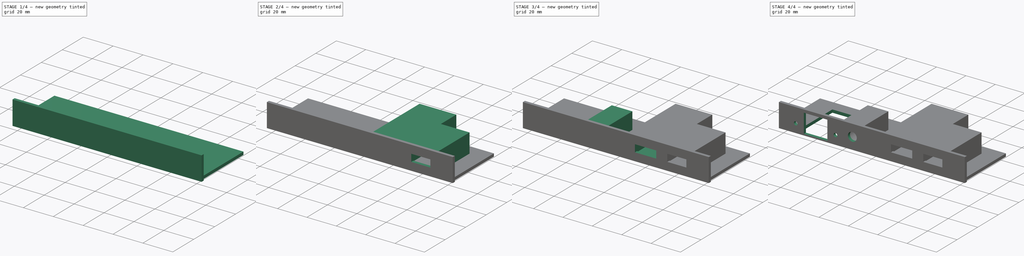
[diagram: build sequence overview — one tinted view per stage of 4, left to right]
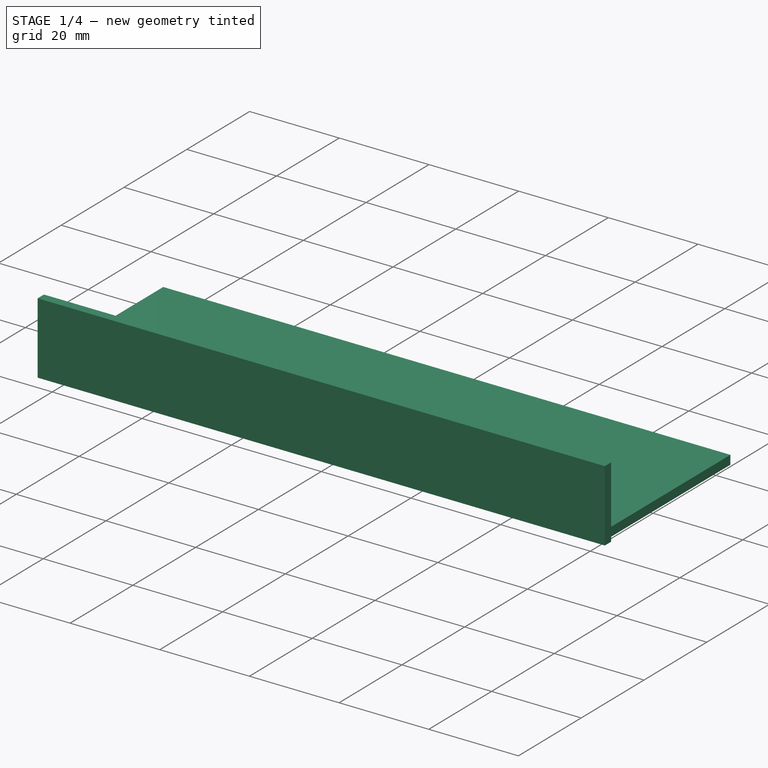
[diagram: stage 1 of 4 — iso view after this stage's code; geometry added in this stage tinted green]
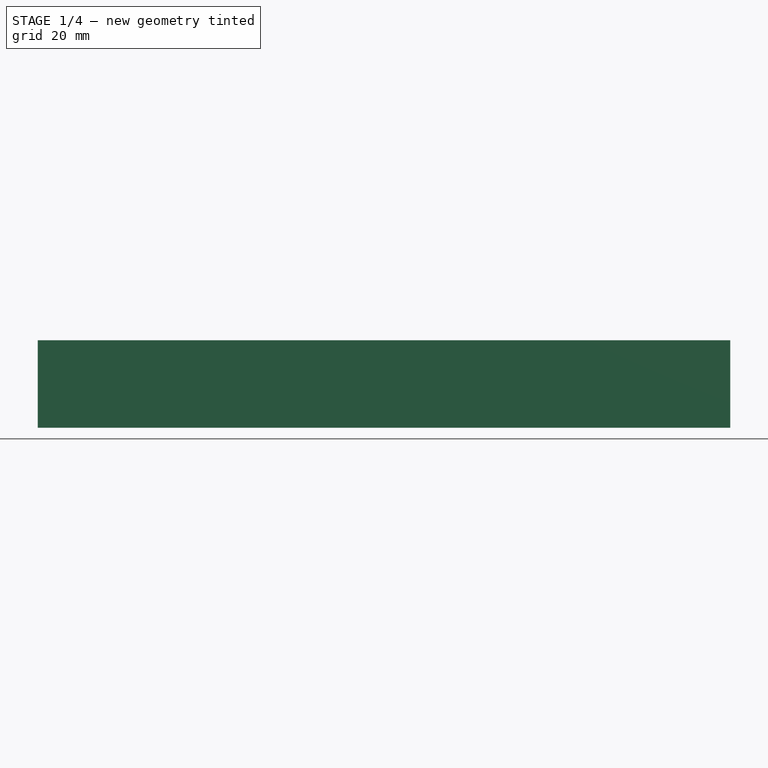
[diagram: stage 1 of 4 — front view after this stage's code; geometry added in this stage tinted green]
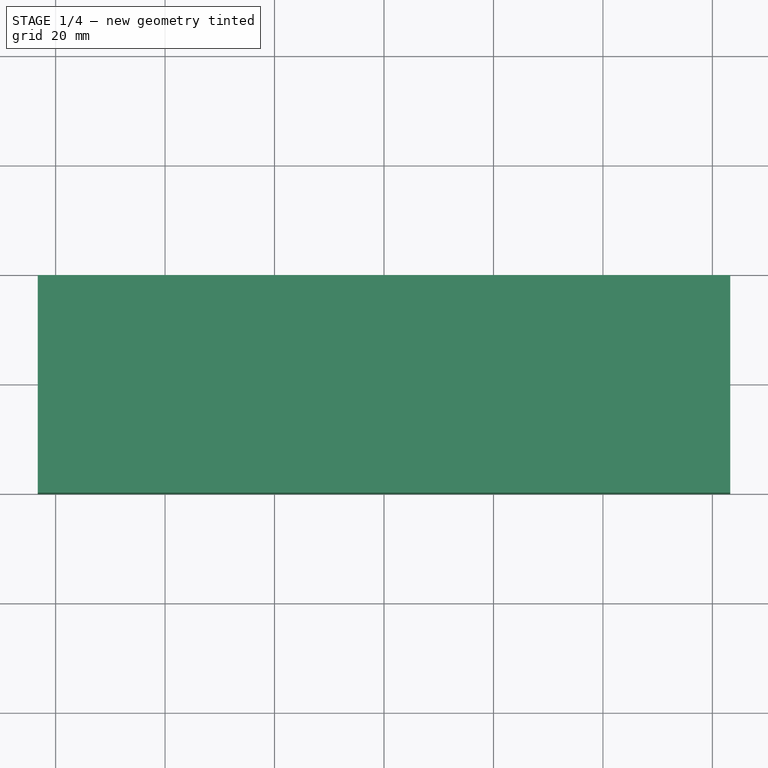
[diagram: stage 1 of 4 — top view after this stage's code; geometry added in this stage tinted green]
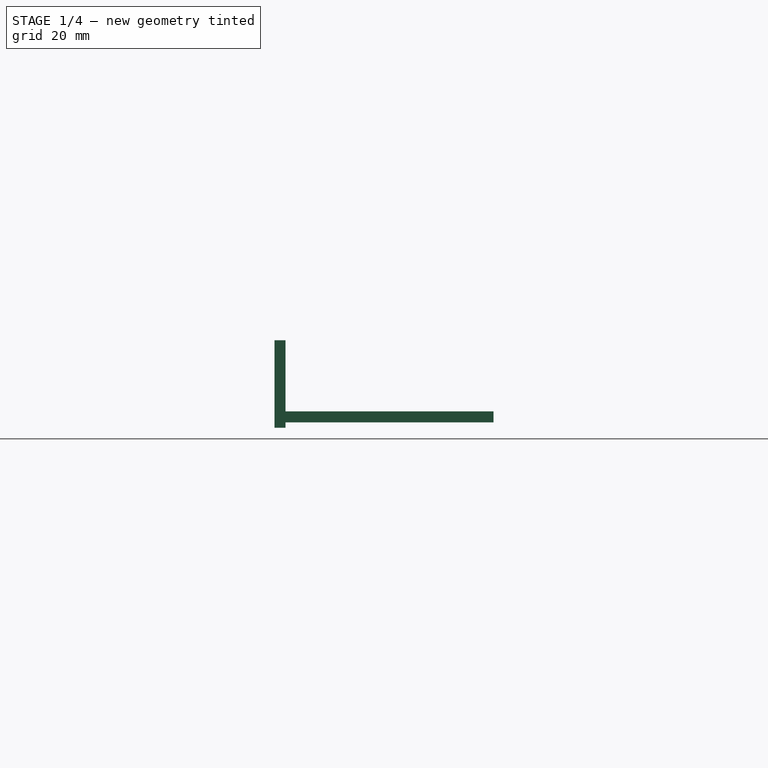
[diagram: stage 1 of 4 — right view after this stage's code; geometry added in this stage tinted green]
FCSTD DOCUMENT  (FreeCAD 0.16R6706 (Git))
Label: PS Aux
License: All rights reserved
LicenseURL: http://en.wikipedia.org/wiki/All_rights_reserved
objects: Sketcher::SketchObject×13, PartDesign::Pocket×9, PartDesign::Pad×4
note: 39 computed .brp shape members not serialized (recipe doc carries the construction recipe); baked Part::Feature solids carry a one-line shape summary decoded from their .brp

FEATURE [Sketcher::SketchObject] Sketch
  sketch-geometry (4):
    g0: LineSegment StartX=-63.25 StartY=40 StartZ=0 EndX=63.25 EndY=40 EndZ=0
    g1: LineSegment StartX=63.25 StartY=40 StartZ=0 EndX=63.25 EndY=0 EndZ=0
    g2: LineSegment StartX=63.25 StartY=0 StartZ=0 EndX=-63.25 EndY=0 EndZ=0
    g3: LineSegment StartX=-63.25 StartY=0 StartZ=0 EndX=-63.25 EndY=40 EndZ=0
  constraints (12):
    c: Coincident(g0,g1)
    c: Coincident(g1,g2)
    c: Coincident(g2,g3)
    c: Coincident(g3,g0)
    c: Horizontal(g0)
    c: Horizontal(g2)
    c: Vertical(g1)
    c: Vertical(g3)
    c: DistanceX(g2,g-1) = 63.25
    c: DistanceX(g0,g0) = 126.5
    c: DistanceY(g3,g3) = 40
    c: DistanceY(g2,g-1) = 0
FEATURE [PartDesign::Pad] Pad
  Length = 3
  Length2 = 100
  Sketch = -> Sketch
  Type = 0
FEATURE [Sketcher::SketchObject] Sketch001
  ExternalGeometry = -> [Pad]
  Placement = pos=(0,0,0) rot=(1,0,0;3.14159rad)
  Support = -> Pad [Face5]
  sketch-geometry (4):
    g0: LineSegment StartX=-63.25 StartY=-40 StartZ=0 EndX=63.25 EndY=-40 EndZ=0
    g1: LineSegment StartX=63.25 StartY=-40 StartZ=0 EndX=63.25 EndY=-2 EndZ=0
    g2: LineSegment StartX=63.25 StartY=-2 StartZ=0 EndX=-63.25 EndY=-2 EndZ=0
    g3: LineSegment StartX=-63.25 StartY=-2 StartZ=0 EndX=-63.25 EndY=-40 EndZ=0
  constraints (11):
    c: Coincident(g0,g1)
    c: Coincident(g1,g2)
    c: Coincident(g2,g3)
    c: Coincident(g3,g0)
    c: Horizontal(g0)
    c: Horizontal(g2)
    c: Vertical(g1)
    c: Vertical(g3)
    c: Coincident(g0,g-3)
    c: PointOnObject(g1,g-4)
    c: DistanceY(g0,g1) = 38
FEATURE [PartDesign::Pocket] Pocket
  Length = 1
  Sketch = -> Sketch001
  Type = 0
FEATURE [Sketcher::SketchObject] Sketch002
  ExternalGeometry = -> [Pocket]
  Placement = pos=(0,0,3) rot=(0,0,1;0rad)
  Support = -> Pocket [Face4]
  sketch-geometry (4):
    g0: LineSegment StartX=-63.25 StartY=2 StartZ=0 EndX=63.25 EndY=2 EndZ=0
    g1: LineSegment StartX=63.25 StartY=2 StartZ=0 EndX=63.25 EndY=0 EndZ=0
    g2: LineSegment StartX=63.25 StartY=0 StartZ=0 EndX=-63.25 EndY=0 EndZ=0
    g3: LineSegment StartX=-63.25 StartY=0 StartZ=0 EndX=-63.25 EndY=2 EndZ=0
  constraints (11):
    c: Coincident(g0,g1)
    c: Coincident(g1,g2)
    c: Coincident(g2,g3)
    c: Coincident(g3,g0)
    c: Horizontal(g0)
    c: Horizontal(g2)
    c: Vertical(g1)
    c: Vertical(g3)
    c: PointOnObject(g0,g-3)
    c: Coincident(g1,g-4)
    c: DistanceY(g1,g0) = 2
FEATURE [PartDesign::Pad] Pad001
  Length = 13
  Length2 = 100
  Sketch = -> Sketch002
  Type = 0
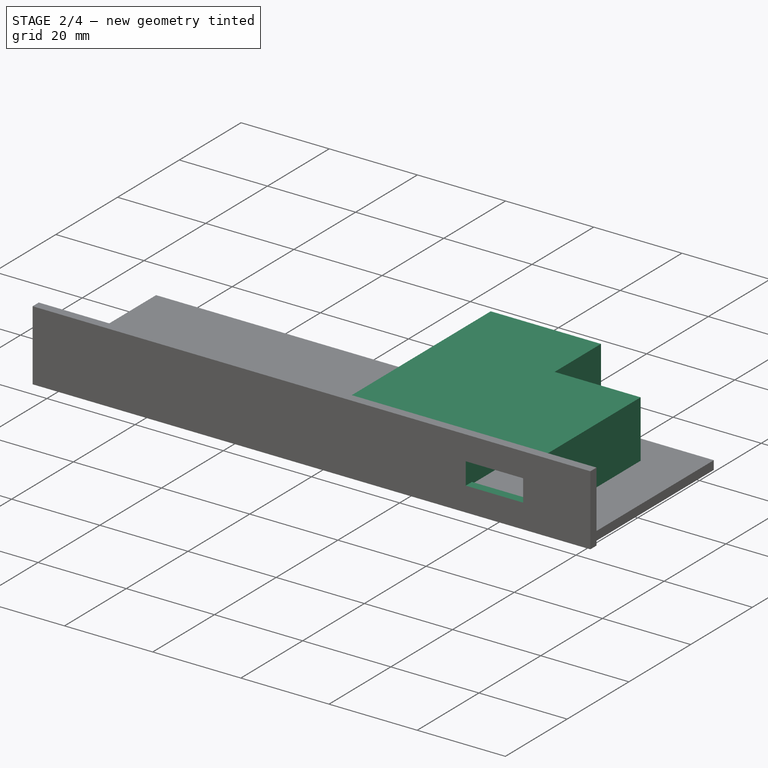
[diagram: stage 2 of 4 — iso view after this stage's code; geometry added in this stage tinted green]
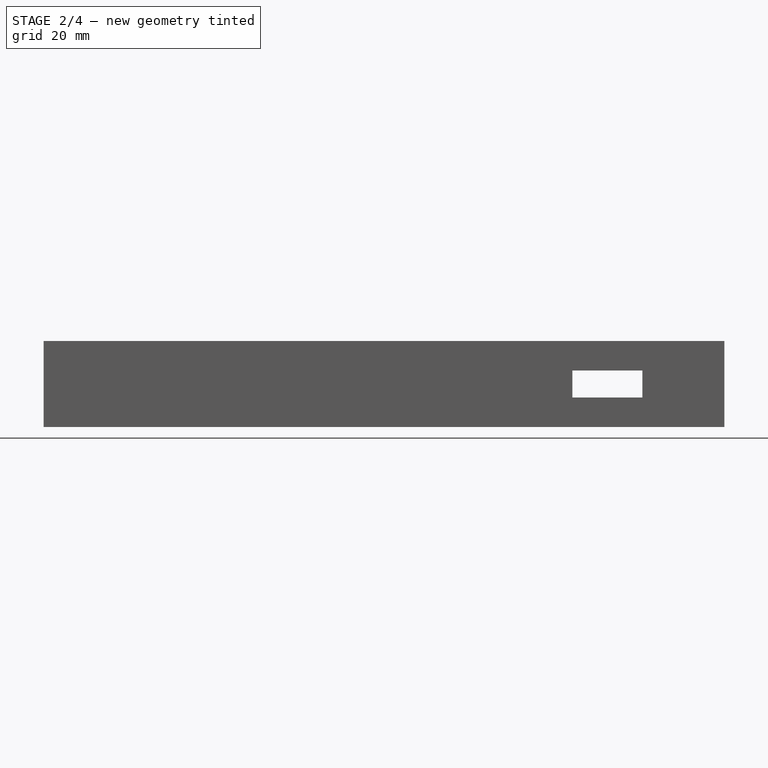
[diagram: stage 2 of 4 — front view after this stage's code; geometry added in this stage tinted green]
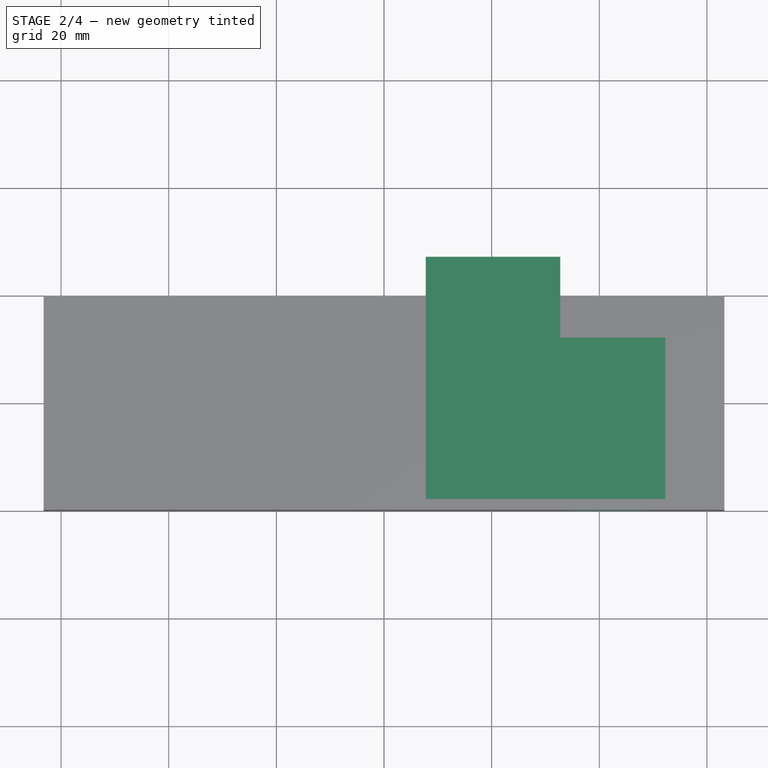
[diagram: stage 2 of 4 — top view after this stage's code; geometry added in this stage tinted green]
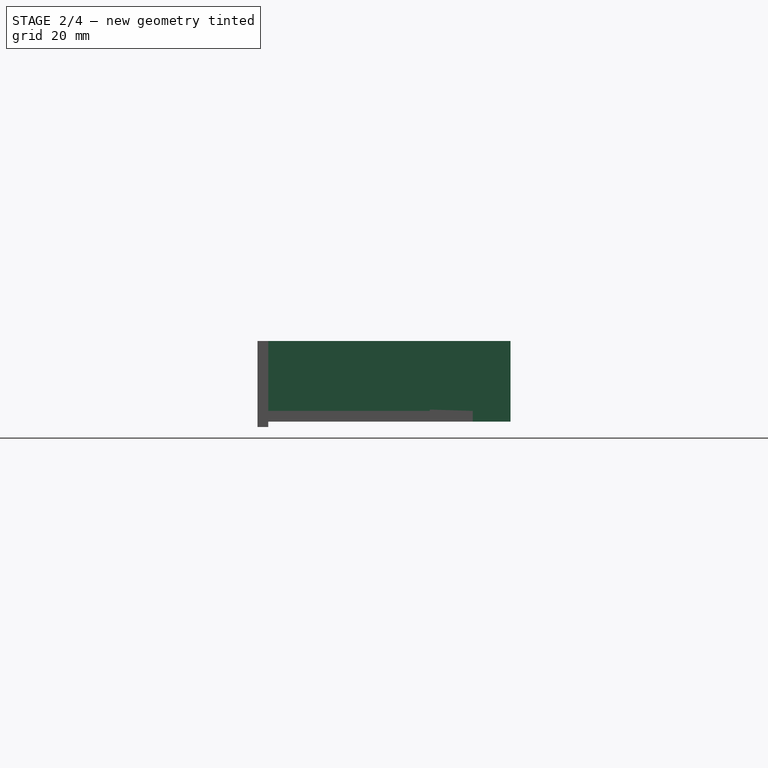
[diagram: stage 2 of 4 — right view after this stage's code; geometry added in this stage tinted green]
FEATURE [Sketcher::SketchObject] Sketch003
  ExternalGeometry = -> [Pad001]
  Placement = pos=(0,0,1) rot=(1,0,0;3.14159rad)
  Support = -> Pad001 [Face2]
  sketch-geometry (8):
    g0: LineSegment StartX=52.25 StartY=-2 StartZ=0 EndX=32.75 EndY=-2 EndZ=0
    g1: LineSegment StartX=32.75 StartY=-2 StartZ=0 EndX=32.75 EndY=-32 EndZ=0
    g2: LineSegment StartX=32.75 StartY=-32 StartZ=0 EndX=52.25 EndY=-32 EndZ=0
    g3: LineSegment StartX=52.25 StartY=-32 StartZ=0 EndX=52.25 EndY=-2 EndZ=0
    g4: LineSegment StartX=32.75 StartY=-2 StartZ=0 EndX=7.75 EndY=-2 EndZ=0
    g5: LineSegment StartX=7.75 StartY=-2 StartZ=0 EndX=7.75 EndY=-47 EndZ=0
    g6: LineSegment StartX=7.75 StartY=-47 StartZ=0 EndX=32.75 EndY=-47 EndZ=0
    g7: LineSegment StartX=32.75 StartY=-47 StartZ=0 EndX=32.75 EndY=-2 EndZ=0
  constraints (23):
    c: Coincident(g0,g1)
    c: Coincident(g1,g2)
    c: Coincident(g2,g3)
    c: Coincident(g3,g0)
    c: Horizontal(g0)
    c: Horizontal(g2)
    c: Vertical(g1)
    c: Vertical(g3)
    c: PointOnObject(g0,g-4)
    c: Coincident(g4,g5)
    c: Coincident(g5,g6)
    c: Coincident(g6,g7)
    c: Coincident(g7,g4)
    c: Horizontal(g4)
    c: Horizontal(g6)
    c: Vertical(g5)
    c: Vertical(g7)
    c: Coincident(g4,g0)
    c: DistanceX(g0,g-4) = 11
    c: DistanceY(g2,g0) = 30
    c: DistanceY(g5,g5) = 45
    c: DistanceX(g2,g2) = 19.5
    c: DistanceX(g6,g6) = 25
FEATURE [PartDesign::Pad] Pad002
  Length = 15
  Length2 = 100
  Reversed = true
  Sketch = -> Sketch003
  Type = 0
FEATURE [Sketcher::SketchObject] Sketch004
  ExternalGeometry = -> [Pad002]
  Placement = pos=(0,32,0) rot=(0,0.707107,0.707107;3.14159rad)
  Support = -> Pad002 [Face25]
  sketch-geometry (4):
    g0: LineSegment StartX=-48 StartY=10.5 StartZ=0 EndX=-35 EndY=10.5 EndZ=0
    g1: LineSegment StartX=-35 StartY=10.5 StartZ=0 EndX=-35 EndY=5.5 EndZ=0
    g2: LineSegment StartX=-35 StartY=5.5 StartZ=0 EndX=-48 EndY=5.5 EndZ=0
    g3: LineSegment StartX=-48 StartY=5.5 StartZ=0 EndX=-48 EndY=10.5 EndZ=0
  constraints (12):
    c: Coincident(g0,g1)
    c: Coincident(g1,g2)
    c: Coincident(g2,g3)
    c: Coincident(g3,g0)
    c: Horizontal(g0)
    c: Horizontal(g2)
    c: Vertical(g1)
    c: Vertical(g3)
    c: DistanceX(g0,g0) = 13
    c: DistanceY(g3,g3) = 5
    c: DistanceX(g-3,g0) = 4.25
    c: DistanceY(g0,g-3) = 5.5
FEATURE [PartDesign::Pocket] Pocket001
  Length = 5
  Sketch = -> Sketch004
  Type = 1
FEATURE [Sketcher::SketchObject] Sketch005
  ExternalGeometry = -> [Pocket001]
  Placement = pos=(0,32,0) rot=(0,0.707107,0.707107;3.14159rad)
  Support = -> Pocket001 [Face29]
  sketch-geometry (4):
    g0: LineSegment StartX=-32.75 StartY=12.75 StartZ=0 EndX=-50.25 EndY=12.75 EndZ=0
    g1: LineSegment StartX=-50.25 StartY=12.75 StartZ=0 EndX=-50.25 EndY=3.25 EndZ=0
    g2: LineSegment StartX=-50.25 StartY=3.25 StartZ=0 EndX=-32.75 EndY=3.25 EndZ=0
    g3: LineSegment StartX=-32.75 StartY=3.25 StartZ=0 EndX=-32.75 EndY=12.75 EndZ=0
  constraints (12):
    c: Coincident(g0,g1)
    c: Coincident(g1,g2)
    c: Coincident(g2,g3)
    c: Coincident(g3,g0)
    c: Horizontal(g0)
    c: Horizontal(g2)
    c: Vertical(g1)
    c: Vertical(g3)
    c: PointOnObject(g0,g-3)
    c: DistanceX(g0,g0) = 17.5
    c: DistanceY(g1,g1) = 9.5
    c: DistanceY(g0,g-5) = 3.25
FEATURE [PartDesign::Pocket] Pocket002
  Length = 30
  Sketch = -> Sketch005
  Type = 0
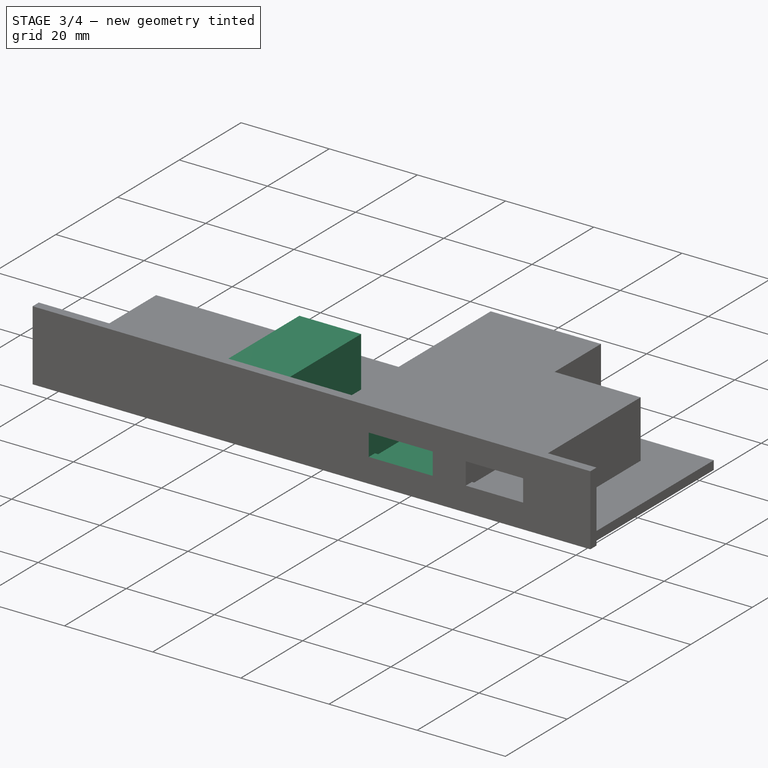
[diagram: stage 3 of 4 — iso view after this stage's code; geometry added in this stage tinted green]
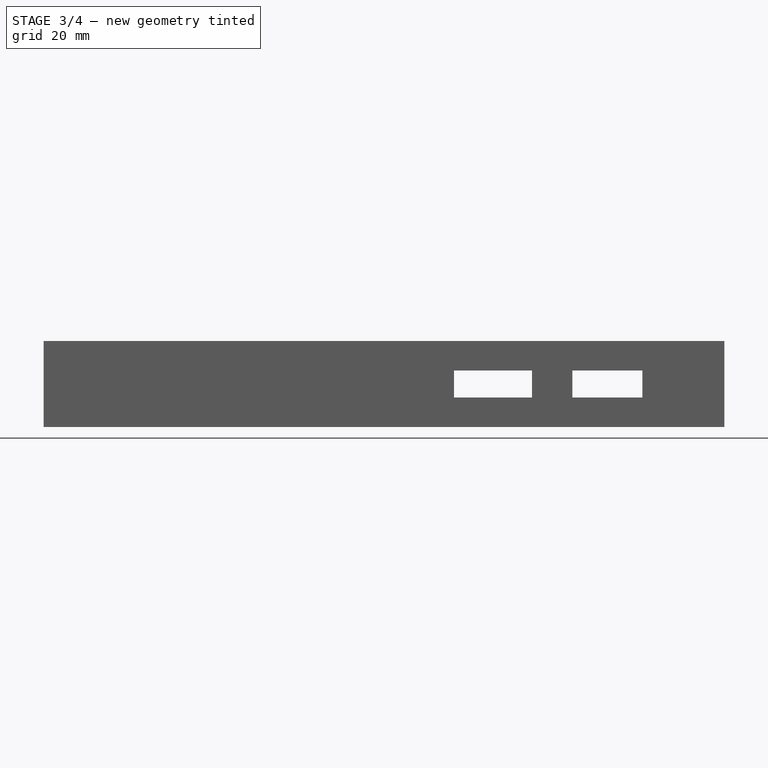
[diagram: stage 3 of 4 — front view after this stage's code; geometry added in this stage tinted green]
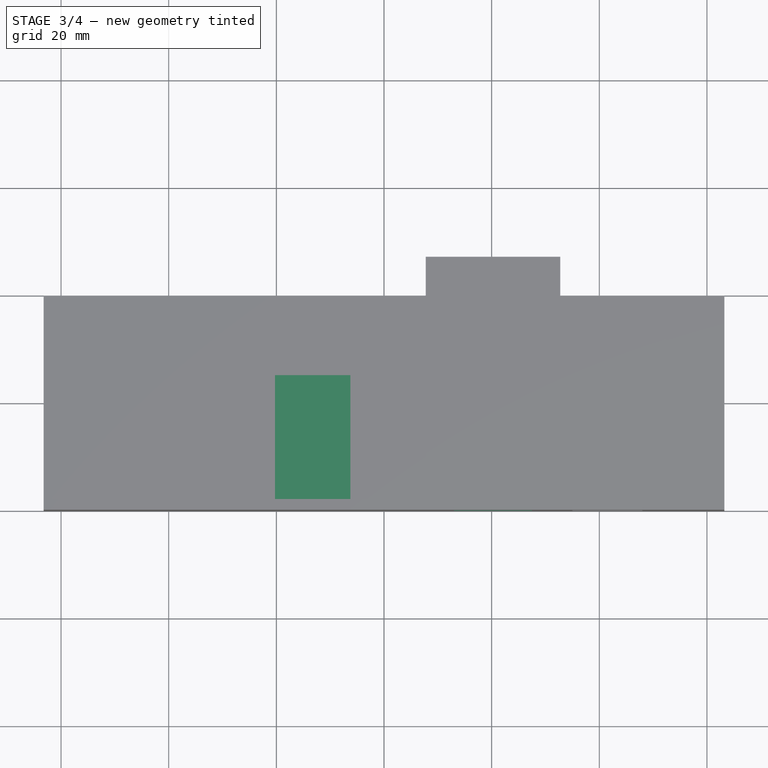
[diagram: stage 3 of 4 — top view after this stage's code; geometry added in this stage tinted green]
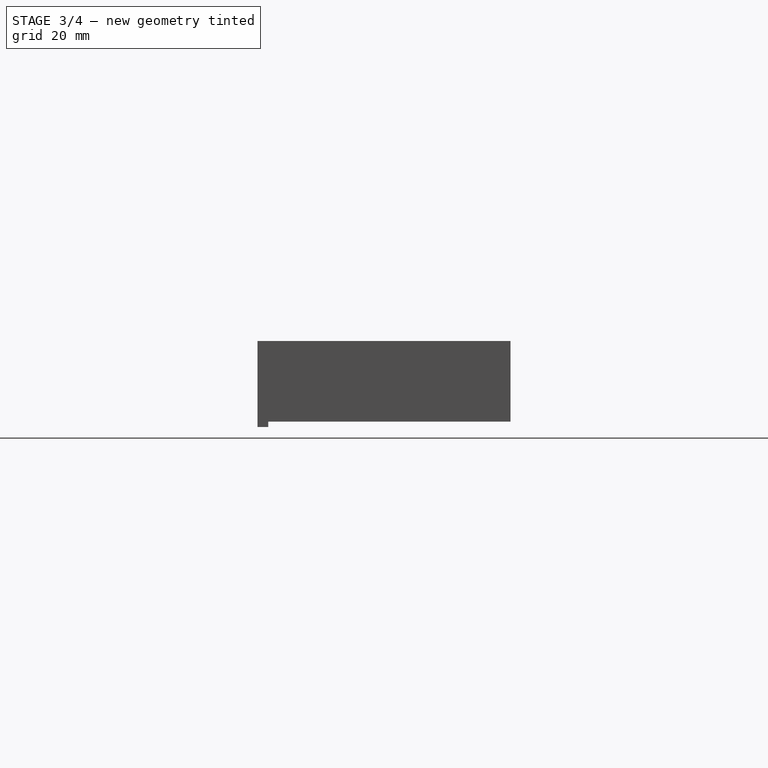
[diagram: stage 3 of 4 — right view after this stage's code; geometry added in this stage tinted green]
FEATURE [Sketcher::SketchObject] Sketch006
  ExternalGeometry = -> [Pocket002]
  Placement = pos=(0,47,0) rot=(0,0.707107,0.707107;3.14159rad)
  Support = -> Pocket002 [Face26]
  sketch-geometry (4):
    g0: LineSegment StartX=-27.5 StartY=10.5 StartZ=0 EndX=-13 EndY=10.5 EndZ=0
    g1: LineSegment StartX=-13 StartY=10.5 StartZ=0 EndX=-13 EndY=5.5 EndZ=0
    g2: LineSegment StartX=-13 StartY=5.5 StartZ=0 EndX=-27.5 EndY=5.5 EndZ=0
    g3: LineSegment StartX=-27.5 StartY=5.5 StartZ=0 EndX=-27.5 EndY=10.5 EndZ=0
  constraints (12):
    c: Coincident(g0,g1)
    c: Coincident(g1,g2)
    c: Coincident(g2,g3)
    c: Coincident(g3,g0)
    c: Horizontal(g0)
    c: Horizontal(g2)
    c: Vertical(g1)
    c: Vertical(g3)
    c: DistanceY(g3,g3) = 5
    c: DistanceX(g0,g0) = 14.5
    c: DistanceY(g0,g-3) = 5.5
    c: DistanceX(g-3,g0) = 5.25
FEATURE [PartDesign::Pocket] Pocket003
  Length = 5
  Sketch = -> Sketch006
  Type = 1
FEATURE [Sketcher::SketchObject] Sketch007
  ExternalGeometry = -> [Pocket003]
  Placement = pos=(0,47,0) rot=(0,0.707107,0.707107;3.14159rad)
  Support = -> Pocket003 [Face30]
  sketch-geometry (4):
    g0: LineSegment StartX=-30.75 StartY=13.75 StartZ=0 EndX=-9.75 EndY=13.75 EndZ=0
    g1: LineSegment StartX=-9.75 StartY=13.75 StartZ=0 EndX=-9.75 EndY=2.25 EndZ=0
    g2: LineSegment StartX=-9.75 StartY=2.25 StartZ=0 EndX=-30.75 EndY=2.25 EndZ=0
    g3: LineSegment StartX=-30.75 StartY=2.25 StartZ=0 EndX=-30.75 EndY=13.75 EndZ=0
  constraints (12):
    c: Coincident(g0,g1)
    c: Coincident(g1,g2)
    c: Coincident(g2,g3)
    c: Coincident(g3,g0)
    c: Horizontal(g0)
    c: Horizontal(g2)
    c: Vertical(g1)
    c: Vertical(g3)
    c: DistanceY(g1,g1) = 11.5
    c: DistanceX(g0,g0) = 21
    c: DistanceX(g-3,g0) = 2
    c: DistanceY(g0,g-3) = 2.25
FEATURE [PartDesign::Pocket] Pocket004
  Length = 45
  Sketch = -> Sketch007
  Type = 0
FEATURE [Sketcher::SketchObject] Sketch008
  ExternalGeometry = -> [Pocket004]
  Placement = pos=(0,0,3) rot=(0,0,1;0rad)
  Support = -> Pocket004 [Face7]
  sketch-geometry (4):
    g0: LineSegment StartX=-6.25 StartY=2 StartZ=0 EndX=-20.25 EndY=2 EndZ=0
    g1: LineSegment StartX=-20.25 StartY=2 StartZ=0 EndX=-20.25 EndY=25 EndZ=0
    g2: LineSegment StartX=-20.25 StartY=25 StartZ=0 EndX=-6.25 EndY=25 EndZ=0
    g3: LineSegment StartX=-6.25 StartY=25 StartZ=0 EndX=-6.25 EndY=2 EndZ=0
  constraints (12):
    c: Coincident(g0,g1)
    c: Coincident(g1,g2)
    c: Coincident(g2,g3)
    c: Coincident(g3,g0)
    c: Horizontal(g0)
    c: Horizontal(g2)
    c: Vertical(g1)
    c: Vertical(g3)
    c: PointOnObject(g0,g-3)
    c: DistanceY(g1,g1) = 23
    c: DistanceX(g2,g2) = 14
    c: DistanceX(g-3,g0) = 57
FEATURE [PartDesign::Pad] Pad003
  Length = 13
  Length2 = 100
  Sketch = -> Sketch008
  Type = 0
FEATURE [Sketcher::SketchObject] Sketch009
  ExternalGeometry = -> [Pad003]
  Placement = pos=(0,25,0) rot=(0,0.707107,0.707107;3.14159rad)
  Support = -> Pad003 [Face18]
  sketch-geometry (1):
    g0: Circle CenterX=13.25 CenterY=8 CenterZ=0 NormalX=0 NormalY=0 NormalZ=1 Radius=5
  constraints (3):
    c: Radius(g0) = 5
    c: DistanceY(g0,g-3) = 8
    c: DistanceX(g-4,g0) = 7
FEATURE [PartDesign::Pocket] Pocket005
  Length = 23
  Sketch = -> Sketch009
  Type = 0
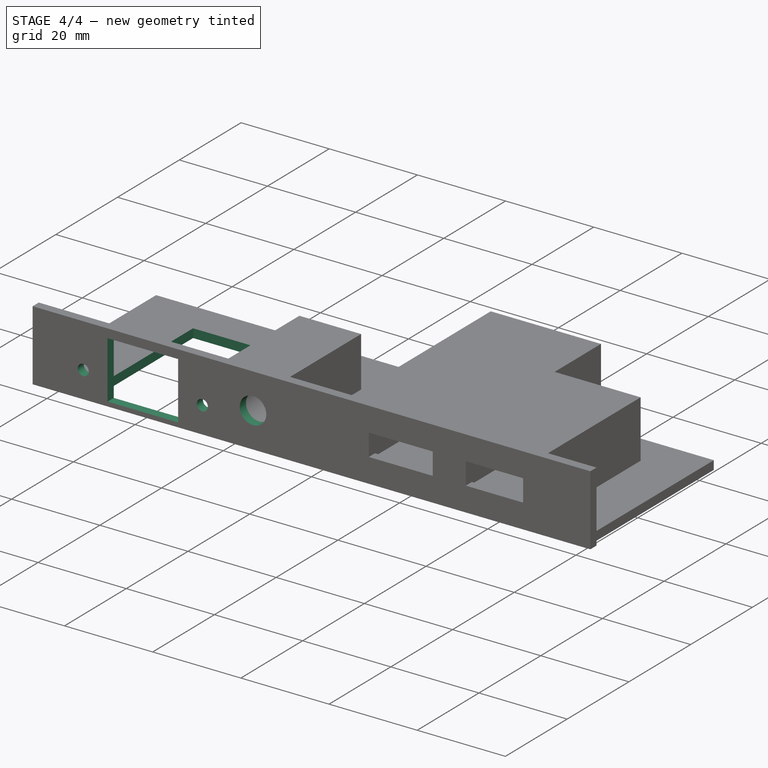
[diagram: stage 4 of 4 — iso view after this stage's code; geometry added in this stage tinted green]
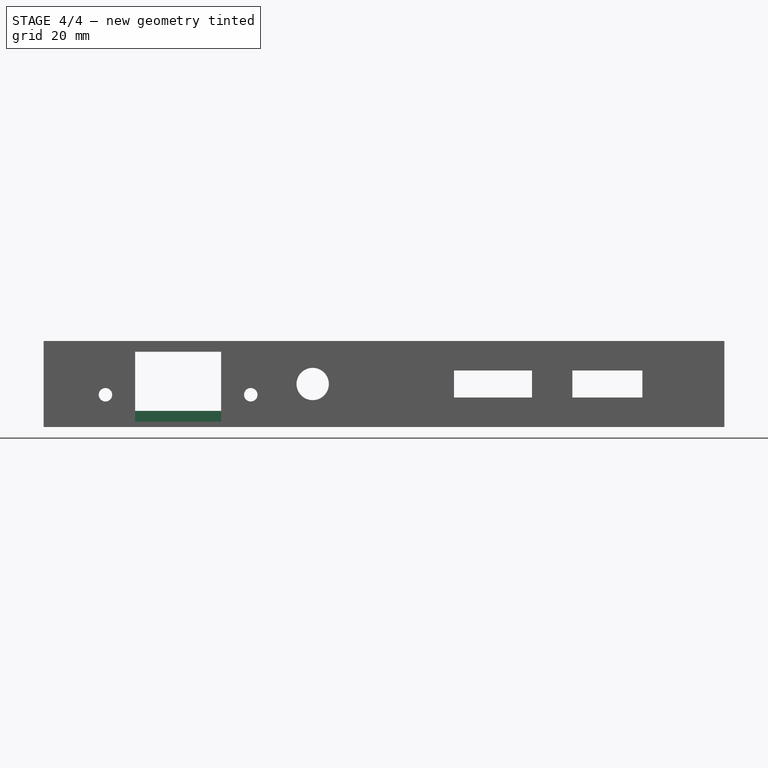
[diagram: stage 4 of 4 — front view after this stage's code; geometry added in this stage tinted green]
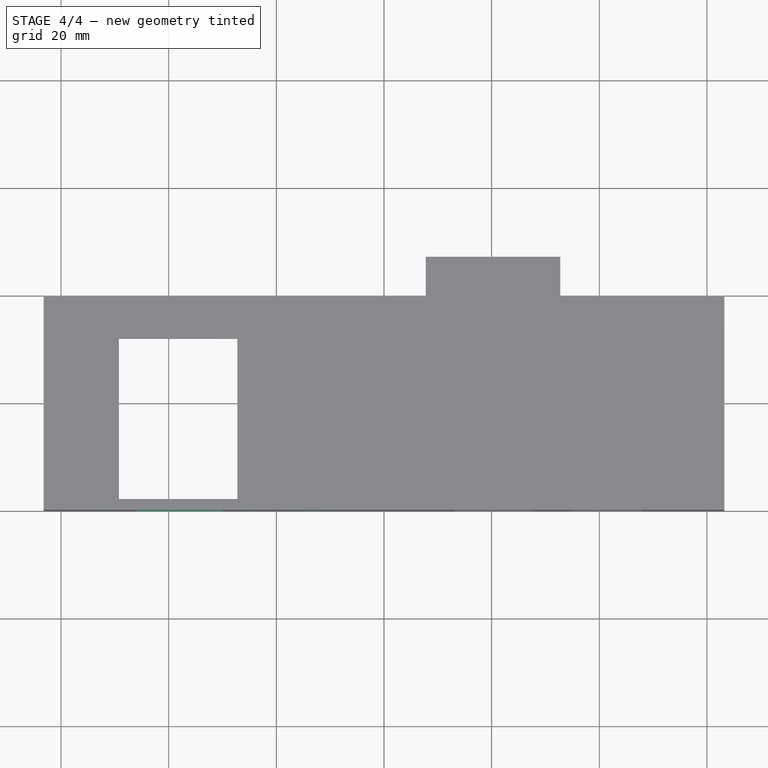
[diagram: stage 4 of 4 — top view after this stage's code; geometry added in this stage tinted green]
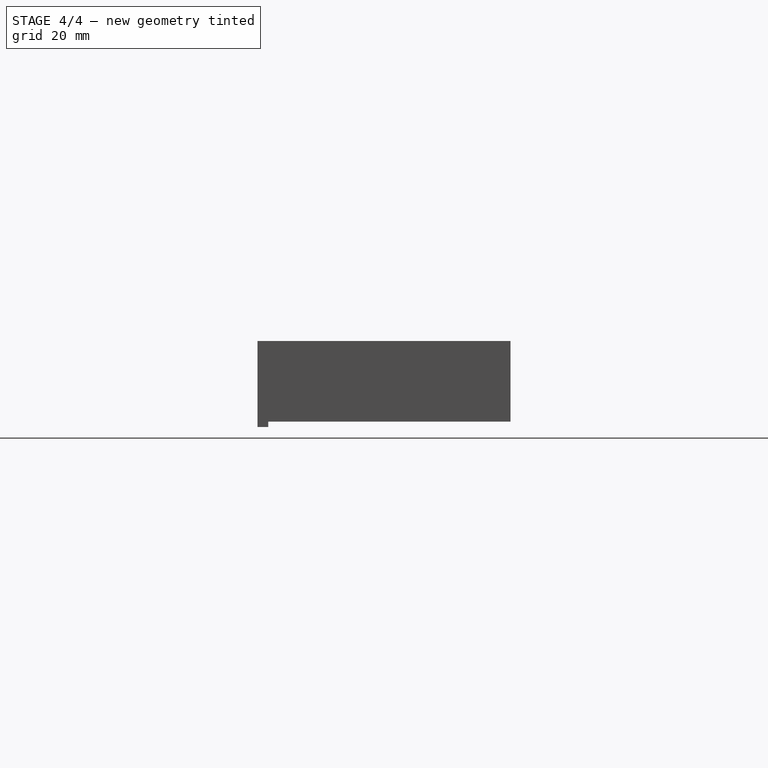
[diagram: stage 4 of 4 — right view after this stage's code; geometry added in this stage tinted green]
FEATURE [Sketcher::SketchObject] Sketch010
  ExternalGeometry = -> [Pocket005]
  Placement = pos=(0,2,0) rot=(0,0.707107,0.707107;3.14159rad)
  Support = -> Pocket005 [Face46]
  sketch-geometry (1):
    g0: Circle CenterX=13.25 CenterY=8 CenterZ=0 NormalX=0 NormalY=0 NormalZ=1 Radius=3
  constraints (2):
    c: Coincident(g0,g-3)
    c: Radius(g0) = 3
FEATURE [PartDesign::Pocket] Pocket006
  Length = 5
  Sketch = -> Sketch010
  Type = 1
FEATURE [Sketcher::SketchObject] Sketch011
  ExternalGeometry = -> [Pocket006]
  Placement = pos=(0,0,0) rot=(1,0,0;1.5708rad)
  Support = -> Pocket006 [Face10]
  sketch-geometry (6):
    g0: LineSegment StartX=-46.25 StartY=14 StartZ=0 EndX=-30.25 EndY=14 EndZ=0
    g1: LineSegment StartX=-30.25 StartY=14 StartZ=0 EndX=-30.25 EndY=1 EndZ=0
    g2: LineSegment StartX=-30.25 StartY=1 StartZ=0 EndX=-46.25 EndY=1 EndZ=0
    g3: LineSegment StartX=-46.25 StartY=1 StartZ=0 EndX=-46.25 EndY=14 EndZ=0
    g4: Circle CenterX=-24.75 CenterY=6 CenterZ=0 NormalX=0 NormalY=0 NormalZ=1 Radius=1.25
    g5: Circle CenterX=-51.75 CenterY=6 CenterZ=0 NormalX=0 NormalY=0 NormalZ=1 Radius=1.25
  constraints (18):
    c: Coincident(g0,g1)
    c: Coincident(g1,g2)
    c: Coincident(g2,g3)
    c: Coincident(g3,g0)
    c: Horizontal(g0)
    c: Horizontal(g2)
    c: Vertical(g1)
    c: Vertical(g3)
    c: DistanceY(g-3,g2) = 1
    c: DistanceY(g3,g3) = 13
    c: DistanceX(g0,g0) = 16
    c: DistanceX(g0,g-4) = 26
    c: DistanceX(g5,g4) = 27
    c: DistanceX(g5,g0) = 5.5
    c: DistanceY(g2,g5) = 5
    c: DistanceY(g5,g4) = 0
    c: Radius(g4) = 1.25
    c: Radius(g5) = 1.25
FEATURE [PartDesign::Pocket] Pocket007
  Length = 2
  Sketch = -> Sketch011
  Type = 0
FEATURE [Sketcher::SketchObject] Sketch012
  ExternalGeometry = -> [Pocket007]
  Placement = pos=(0,0,3) rot=(0,0,1;0rad)
  Support = -> Pocket007 [Face7]
  sketch-geometry (4):
    g0: LineSegment StartX=-49.25 StartY=2 StartZ=0 EndX=-27.25 EndY=2 EndZ=0
    g1: LineSegment StartX=-27.25 StartY=2 StartZ=0 EndX=-27.25 EndY=32 EndZ=0
    g2: LineSegment StartX=-27.25 StartY=32 StartZ=0 EndX=-49.25 EndY=32 EndZ=0
    g3: LineSegment StartX=-49.25 StartY=32 StartZ=0 EndX=-49.25 EndY=2 EndZ=0
  constraints (12):
    c: Coincident(g0,g1)
    c: Coincident(g1,g2)
    c: Coincident(g2,g3)
    c: Coincident(g3,g0)
    c: Horizontal(g0)
    c: Horizontal(g2)
    c: Vertical(g1)
    c: Vertical(g3)
    c: PointOnObject(g0,g-3)
    c: DistanceX(g2,g2) = 22
    c: DistanceX(g0,g-5) = 3
    c: DistanceY(g3,g3) = 30
FEATURE [PartDesign::Pocket] Pocket008
  Length = 5
  Sketch = -> Sketch012
  Type = 1
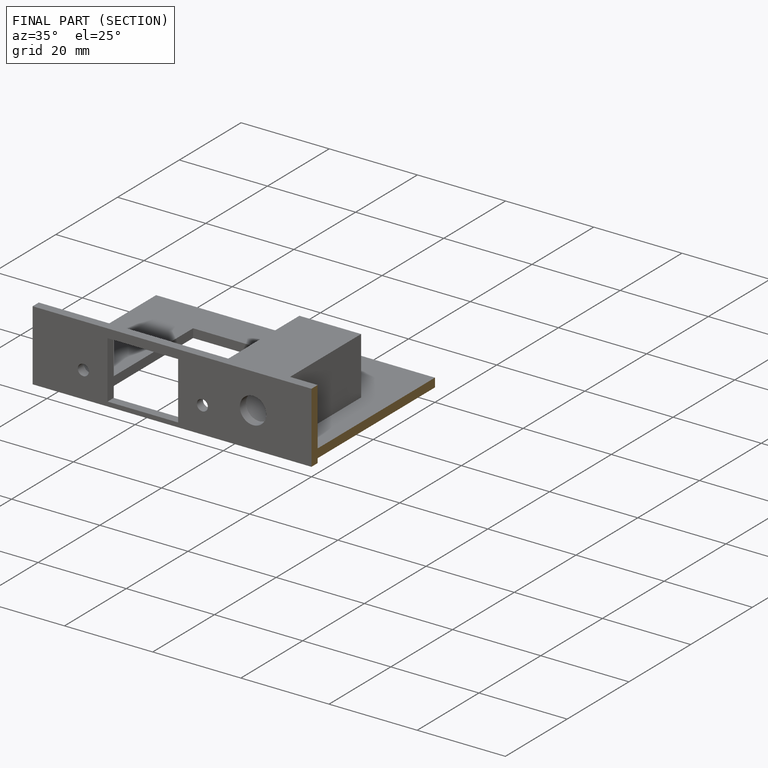
[diagram: finished part — half-section view (interior)]
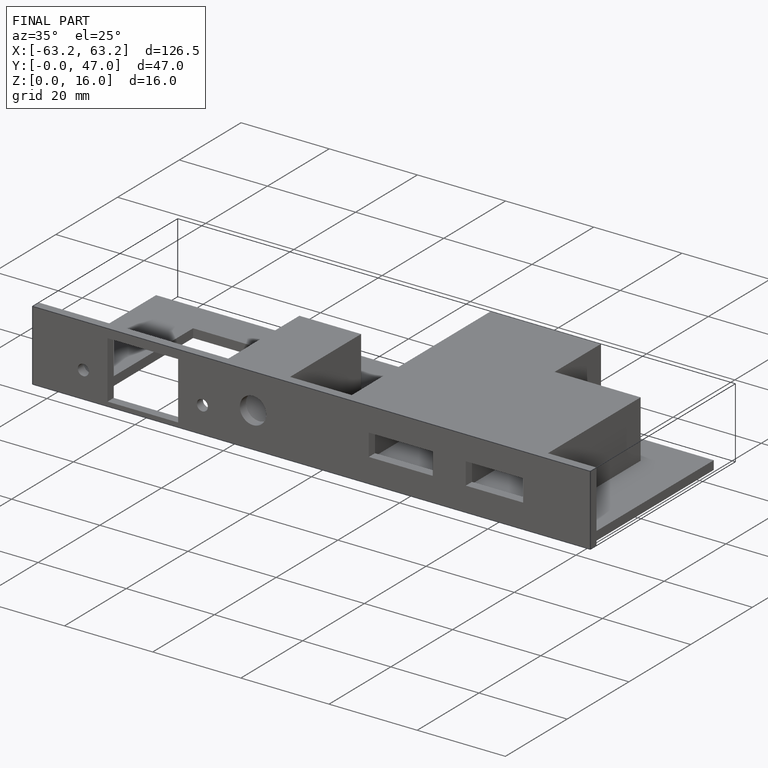
[diagram: finished part — iso view with bounding-box wireframe]
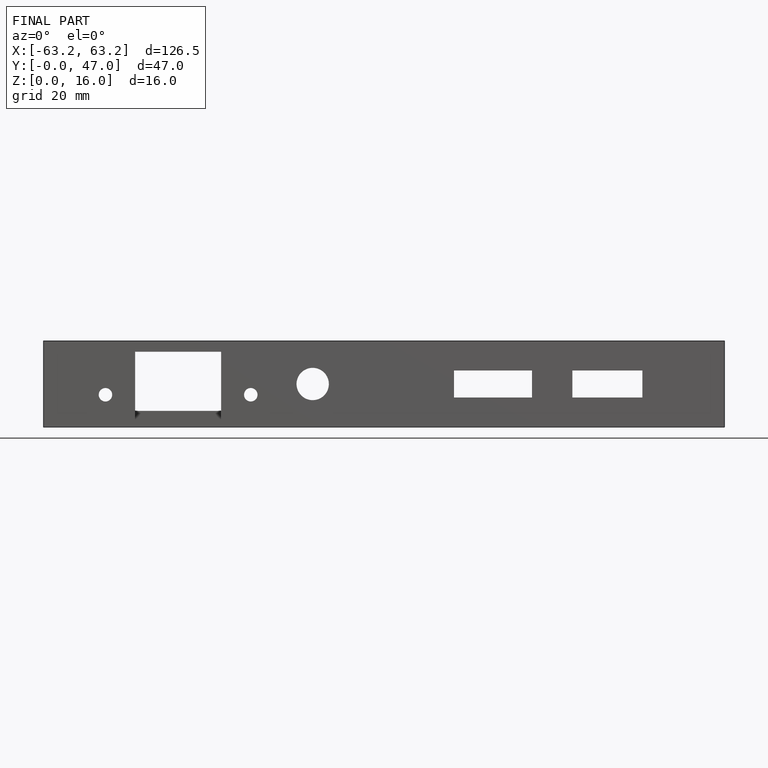
[diagram: finished part — front view with bounding-box wireframe]
